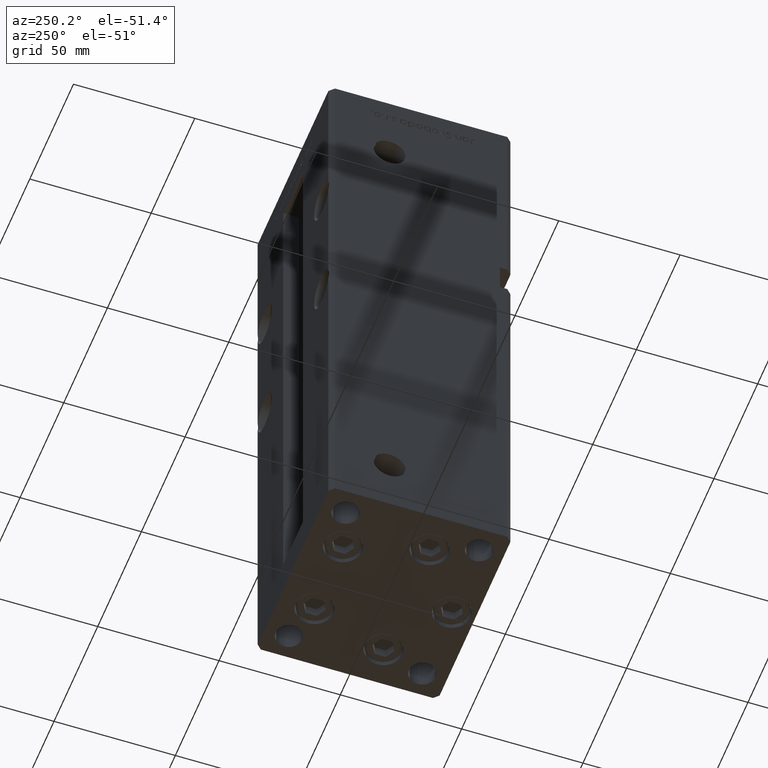
[diagram: clean part render]
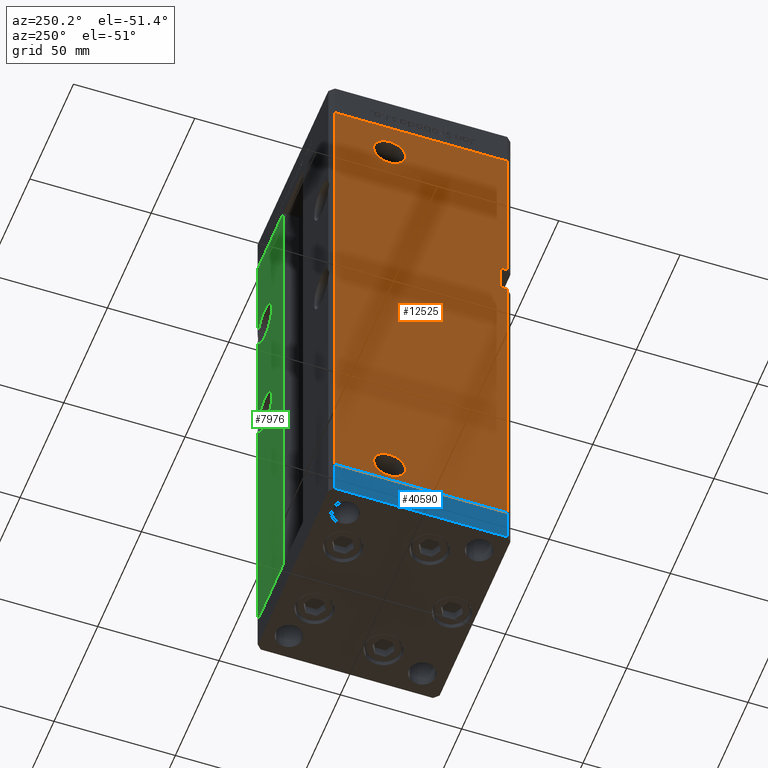
[diagram: same view with three faces highlighted in distinct colors, each labeled with its STEP entity id]
A machine part, auxiliary view with three faces highlighted in distinct colors.
Their STEP definitions:

[orange] entity #12525 — the highlighted planar face has unit normal (1, 0, 0).
#315 = CARTESIAN_POINT ( 'NONE',  ( -42.50000000000001421, 35.50000000000000711, 0.000000000000000000 ) ) ;
#450 = DIRECTION ( 'NONE',  ( -3.909236002201255146E-16, 1.000000000000000000, 0.000000000000000000 ) ) ;
#1595 = VECTOR ( 'NONE', #22530, 1000.000000000000000 ) ;
#2343 = CARTESIAN_POINT ( 'NONE',  ( -42.50000000000001421, 35.50000000000000711, 0.000000000000000000 ) ) ;
#4522 = CARTESIAN_POINT ( 'NONE',  ( -42.49999999999998579, -35.49999999999996447, 139.0000000000000284 ) ) ;
#5471 = DIRECTION ( 'NONE',  ( -1.000000000000000000, -2.275047181608927644E-16, 0.000000000000000000 ) ) ;
#5996 = CARTESIAN_POINT ( 'NONE',  ( -42.50000000000001421, 35.50000000000000711, 218.5000000000000000 ) ) ;
#6249 = CARTESIAN_POINT ( 'NONE',  ( -42.50000000000000000, 19.58000000000000895, 203.5000000000000000 ) ) ;
#6898 = LINE ( 'NONE', #7680, #25283 ) ;
#7068 = EDGE_CURVE ( 'NONE', #34292, #44123, #17790, .T. ) ;
#7445 = ORIENTED_EDGE ( 'NONE', *, *, #27157, .F. ) ;
#7680 = CARTESIAN_POINT ( 'NONE',  ( -42.49999999999998579, -32.50000000000000711, 139.0000000000000284 ) ) ;
#7770 = EDGE_CURVE ( 'NONE', #10957, #23365, #30446, .T. ) ;
#8430 = DIRECTION ( 'NONE',  ( 0.000000000000000000, -1.000000000000000000, 0.000000000000000000 ) ) ;
#8622 = EDGE_CURVE ( 'NONE', #10152, #40328, #6898, .T. ) ;
#8661 = VERTEX_POINT ( 'NONE', #13026 ) ;
#8979 = AXIS2_PLACEMENT_3D ( 'NONE', #19770, #52051, #24060 ) ;
#10152 = VERTEX_POINT ( 'NONE', #14323 ) ;
#10252 = CARTESIAN_POINT ( 'NONE',  ( -42.50000000000001421, 35.50000000000000711, 218.5000000000000000 ) ) ;
#10771 = CARTESIAN_POINT ( 'NONE',  ( -42.49999999999998579, -35.50000000000000711, 218.5000000000000000 ) ) ;
#10957 = VERTEX_POINT ( 'NONE', #6249 ) ;
#11264 = ORIENTED_EDGE ( 'NONE', *, *, #13007, .F. ) ;
#11286 = VERTEX_POINT ( 'NONE', #50827 ) ;
#11981 = ORIENTED_EDGE ( 'NONE', *, *, #40268, .F. ) ;
#12525 = ADVANCED_FACE ( 'NONE', ( #36470, #52875, #37264 ), #20856, .F. ) ;
#13007 = EDGE_CURVE ( 'NONE', #15547, #19266, #38279, .T. ) ;
#13026 = CARTESIAN_POINT ( 'NONE',  ( -42.49999999999998579, -32.50000000000000711, 151.0000000000000568 ) ) ;
#13139 = ORIENTED_EDGE ( 'NONE', *, *, #7770, .F. ) ;
#13145 = ORIENTED_EDGE ( 'NONE', *, *, #48176, .F. ) ;
#13301 = ORIENTED_EDGE ( 'NONE', *, *, #8622, .F. ) ;
#13446 = EDGE_LOOP ( 'NONE', ( #11981, #13139 ) ) ;
#13733 = CARTESIAN_POINT ( 'NONE',  ( -42.50000000000000000, 6.419999999999991935, 9.000000000000007105 ) ) ;
#14323 = CARTESIAN_POINT ( 'NONE',  ( -42.49999999999998579, -32.50000000000000711, 139.0000000000000284 ) ) ;
#15547 = VERTEX_POINT ( 'NONE', #38446 ) ;
#15613 = DIRECTION ( 'NONE',  ( -0.000000000000000000, -0.000000000000000000, -1.000000000000000000 ) ) ;
#15880 = ORIENTED_EDGE ( 'NONE', *, *, #40105, .F. ) ;
#16773 = CARTESIAN_POINT ( 'NONE',  ( -42.50000000000000000, 12.99999999999999467, 9.000000000000007105 ) ) ;
#16916 = CARTESIAN_POINT ( 'NONE',  ( -42.50000000000001421, 35.50000000000000711, 218.5000000000000000 ) ) ;
#17790 = LINE ( 'NONE', #315, #49264 ) ;
#18117 = DIRECTION ( 'NONE',  ( -1.000000000000000000, -2.275047181608927644E-16, 0.000000000000000000 ) ) ;
#19266 = VERTEX_POINT ( 'NONE', #30846 ) ;
#19770 = CARTESIAN_POINT ( 'NONE',  ( -42.50000000000000000, 12.99999999999999467, 203.5000000000000000 ) ) ;
#20552 = CIRCLE ( 'NONE', #41168, 6.580000000000002736 ) ;
#20590 = LINE ( 'NONE', #40255, #33081 ) ;
#20856 = PLANE ( 'NONE',  #24396 ) ;
#20989 = DIRECTION ( 'NONE',  ( 3.909236002201255146E-16, -1.000000000000000000, 0.000000000000000000 ) ) ;
#21430 = ORIENTED_EDGE ( 'NONE', *, *, #7068, .T. ) ;
#22530 = DIRECTION ( 'NONE',  ( -5.782411586589351722E-16, 0.000000000000000000, -1.000000000000000000 ) ) ;
#22801 = DIRECTION ( 'NONE',  ( 0.000000000000000000, -1.000000000000000000, 0.000000000000000000 ) ) ;
#23365 = VERTEX_POINT ( 'NONE', #34735 ) ;
#24060 = DIRECTION ( 'NONE',  ( 0.000000000000000000, -1.000000000000000000, 0.000000000000000000 ) ) ;
#24396 = AXIS2_PLACEMENT_3D ( 'NONE', #25166, #41036, #450 ) ;
#24449 = VERTEX_POINT ( 'NONE', #13733 ) ;
#24798 = ORIENTED_EDGE ( 'NONE', *, *, #38761, .T. ) ;
#25166 = CARTESIAN_POINT ( 'NONE',  ( -42.50000000000001421, 35.50000000000000711, 218.5000000000000000 ) ) ;
#25186 = ORIENTED_EDGE ( 'NONE', *, *, #46943, .F. ) ;
#25283 = VECTOR ( 'NONE', #48278, 1000.000000000000000 ) ;
#25362 = AXIS2_PLACEMENT_3D ( 'NONE', #31992, #18117, #48385 ) ;
#26418 = LINE ( 'NONE', #5996, #37607 ) ;
#27157 = EDGE_CURVE ( 'NONE', #24449, #11286, #20552, .T. ) ;
#29275 = LINE ( 'NONE', #16916, #30649 ) ;
#29827 = VECTOR ( 'NONE', #15613, 1000.000000000000000 ) ;
#30446 = CIRCLE ( 'NONE', #8979, 6.580000000000015170 ) ;
#30649 = VECTOR ( 'NONE', #37335, 1000.000000000000000 ) ;
#30846 = CARTESIAN_POINT ( 'NONE',  ( -42.49999999999998579, -35.50000000000001421, 151.0000000000000568 ) ) ;
#31662 = DIRECTION ( 'NONE',  ( -0.000000000000000000, -1.000000000000000000, -0.000000000000000000 ) ) ;
#31992 = CARTESIAN_POINT ( 'NONE',  ( -42.50000000000000000, 12.99999999999999467, 203.5000000000000000 ) ) ;
#32508 = CARTESIAN_POINT ( 'NONE',  ( -42.49999999999998579, -35.50000000000000711, 0.000000000000000000 ) ) ;
#32549 = ORIENTED_EDGE ( 'NONE', *, *, #43165, .T. ) ;
#33081 = VECTOR ( 'NONE', #31662, 1000.000000000000000 ) ;
#34292 = VERTEX_POINT ( 'NONE', #2343 ) ;
#34379 = LINE ( 'NONE', #35172, #1595 ) ;
#34735 = CARTESIAN_POINT ( 'NONE',  ( -42.50000000000000000, 6.419999999999978613, 203.5000000000000000 ) ) ;
#35172 = CARTESIAN_POINT ( 'NONE',  ( -42.49999999999998579, -32.50000000000000711, 151.0000000000000568 ) ) ;
#35500 = LINE ( 'NONE', #10771, #29827 ) ;
#35699 = CIRCLE ( 'NONE', #45985, 6.580000000000002736 ) ;
#36470 = FACE_OUTER_BOUND ( 'NONE', #52083, .T. ) ;
#37264 = FACE_BOUND ( 'NONE', #13446, .T. ) ;
#37335 = DIRECTION ( 'NONE',  ( -0.000000000000000000, -0.000000000000000000, -1.000000000000000000 ) ) ;
#37607 = VECTOR ( 'NONE', #51950, 1000.000000000000000 ) ;
#38279 = LINE ( 'NONE', #46618, #52800 ) ;
#38407 = DIRECTION ( 'NONE',  ( -1.000000000000000000, -2.275047181608927644E-16, 0.000000000000000000 ) ) ;
#38446 = CARTESIAN_POINT ( 'NONE',  ( -42.49999999999998579, -35.50000000000000711, 218.5000000000000000 ) ) ;
#38761 = EDGE_CURVE ( 'NONE', #8661, #19266, #20590, .T. ) ;
#38943 = CARTESIAN_POINT ( 'NONE',  ( -42.50000000000000000, 12.99999999999999467, 9.000000000000007105 ) ) ;
#40105 = EDGE_CURVE ( 'NONE', #11286, #24449, #35699, .T. ) ;
#40255 = CARTESIAN_POINT ( 'NONE',  ( -42.49999999999998579, -32.50000000000000711, 151.0000000000000568 ) ) ;
#40268 = EDGE_CURVE ( 'NONE', #23365, #10957, #41684, .T. ) ;
#40328 = VERTEX_POINT ( 'NONE', #4522 ) ;
#41036 = DIRECTION ( 'NONE',  ( 1.000000000000000000, 3.909236002201255146E-16, -0.000000000000000000 ) ) ;
#41168 = AXIS2_PLACEMENT_3D ( 'NONE', #38943, #38407, #22801 ) ;
#41684 = CIRCLE ( 'NONE', #25362, 6.580000000000015170 ) ;
#43165 = EDGE_CURVE ( 'NONE', #49911, #34292, #29275, .T. ) ;
#44123 = VERTEX_POINT ( 'NONE', #32508 ) ;
#44921 = EDGE_CURVE ( 'NONE', #40328, #44123, #35500, .T. ) ;
#45985 = AXIS2_PLACEMENT_3D ( 'NONE', #16773, #5471, #8430 ) ;
#46082 = DIRECTION ( 'NONE',  ( -0.000000000000000000, -0.000000000000000000, -1.000000000000000000 ) ) ;
#46618 = CARTESIAN_POINT ( 'NONE',  ( -42.49999999999998579, -35.50000000000000711, 218.5000000000000000 ) ) ;
#46943 = EDGE_CURVE ( 'NONE', #49911, #15547, #26418, .T. ) ;
#48176 = EDGE_CURVE ( 'NONE', #8661, #10152, #34379, .T. ) ;
#48278 = DIRECTION ( 'NONE',  ( -0.000000000000000000, -1.000000000000000000, -0.000000000000000000 ) ) ;
#48385 = DIRECTION ( 'NONE',  ( 0.000000000000000000, -1.000000000000000000, 0.000000000000000000 ) ) ;
#48634 = ORIENTED_EDGE ( 'NONE', *, *, #44921, .F. ) ;
#49264 = VECTOR ( 'NONE', #20989, 1000.000000000000000 ) ;
#49911 = VERTEX_POINT ( 'NONE', #10252 ) ;
#50084 = EDGE_LOOP ( 'NONE', ( #7445, #15880 ) ) ;
#50827 = CARTESIAN_POINT ( 'NONE',  ( -42.50000000000000000, 19.57999999999999829, 9.000000000000007105 ) ) ;
#51950 = DIRECTION ( 'NONE',  ( 3.909236002201255146E-16, -1.000000000000000000, 0.000000000000000000 ) ) ;
#52051 = DIRECTION ( 'NONE',  ( -1.000000000000000000, -2.275047181608927644E-16, 0.000000000000000000 ) ) ;
#52083 = EDGE_LOOP ( 'NONE', ( #48634, #13301, #13145, #24798, #11264, #25186, #32549, #21430 ) ) ;
#52800 = VECTOR ( 'NONE', #46082, 1000.000000000000000 ) ;
#52875 = FACE_BOUND ( 'NONE', #50084, .T. ) ;

[blue] entity #40590 — the highlighted planar face has unit normal (-1, -0, 0).
#299 = ORIENTED_EDGE ( 'NONE', *, *, #21342, .T. ) ;
#1150 = ORIENTED_EDGE ( 'NONE', *, *, #17912, .F. ) ;
#1226 = DIRECTION ( 'NONE',  ( 1.000000000000000000, 1.172770800660376741E-15, -0.000000000000000000 ) ) ;
#2297 = PLANE ( 'NONE',  #3085 ) ;
#3085 = AXIS2_PLACEMENT_3D ( 'NONE', #42359, #1226, #6588 ) ;
#6588 = DIRECTION ( 'NONE',  ( -1.172770800660376741E-15, 1.000000000000000000, 0.000000000000000000 ) ) ;
#6620 = VECTOR ( 'NONE', #23669, 1000.000000000000000 ) ;
#8734 = VERTEX_POINT ( 'NONE', #42882 ) ;
#9444 = CARTESIAN_POINT ( 'NONE',  ( 42.50000000000000711, -35.50000000000000000, 0.000000000000000000 ) ) ;
#10202 = CARTESIAN_POINT ( 'NONE',  ( 42.49999999999992895, 35.50000000000000000, -15.00000000000000000 ) ) ;
#12354 = VERTEX_POINT ( 'NONE', #26575 ) ;
#16328 = LINE ( 'NONE', #39745, #44373 ) ;
#17903 = CARTESIAN_POINT ( 'NONE',  ( 42.50000000000000711, -35.50000000000000000, -15.00000000000000000 ) ) ;
#17912 = EDGE_CURVE ( 'NONE', #12354, #8734, #45143, .T. ) ;
#18223 = EDGE_CURVE ( 'NONE', #25493, #49070, #16328, .T. ) ;
#20130 = CARTESIAN_POINT ( 'NONE',  ( 42.49999999999992895, 35.50000000000000000, -15.00000000000000000 ) ) ;
#21342 = EDGE_CURVE ( 'NONE', #49070, #8734, #21757, .T. ) ;
#21757 = LINE ( 'NONE', #10202, #35013 ) ;
#23669 = DIRECTION ( 'NONE',  ( -1.172770800660376741E-15, 1.000000000000000000, 0.000000000000000000 ) ) ;
#24247 = ORIENTED_EDGE ( 'NONE', *, *, #18223, .T. ) ;
#25493 = VERTEX_POINT ( 'NONE', #17903 ) ;
#26575 = CARTESIAN_POINT ( 'NONE',  ( 42.50000000000000711, -35.50000000000000000, 0.000000000000000000 ) ) ;
#27221 = LINE ( 'NONE', #51172, #40833 ) ;
#32451 = DIRECTION ( 'NONE',  ( -1.172770800660376741E-15, 1.000000000000000000, 0.000000000000000000 ) ) ;
#35013 = VECTOR ( 'NONE', #38157, 1000.000000000000000 ) ;
#35781 = EDGE_LOOP ( 'NONE', ( #1150, #46250, #24247, #299 ) ) ;
#36237 = EDGE_CURVE ( 'NONE', #25493, #12354, #27221, .T. ) ;
#38157 = DIRECTION ( 'NONE',  ( 0.000000000000000000, 0.000000000000000000, 1.000000000000000000 ) ) ;
#39745 = CARTESIAN_POINT ( 'NONE',  ( 42.50000000000000711, -35.50000000000000000, -15.00000000000000000 ) ) ;
#40590 = ADVANCED_FACE ( 'NONE', ( #43424 ), #2297, .T. ) ;
#40833 = VECTOR ( 'NONE', #42576, 1000.000000000000000 ) ;
#42359 = CARTESIAN_POINT ( 'NONE',  ( 42.50000000000000711, -35.50000000000000000, -15.00000000000000000 ) ) ;
#42576 = DIRECTION ( 'NONE',  ( 0.000000000000000000, 0.000000000000000000, 1.000000000000000000 ) ) ;
#42882 = CARTESIAN_POINT ( 'NONE',  ( 42.49999999999992895, 35.50000000000000000, 0.000000000000000000 ) ) ;
#43424 = FACE_OUTER_BOUND ( 'NONE', #35781, .T. ) ;
#44373 = VECTOR ( 'NONE', #32451, 1000.000000000000000 ) ;
#45143 = LINE ( 'NONE', #9444, #6620 ) ;
#46250 = ORIENTED_EDGE ( 'NONE', *, *, #36237, .F. ) ;
#49070 = VERTEX_POINT ( 'NONE', #20130 ) ;
#51172 = CARTESIAN_POINT ( 'NONE',  ( 42.50000000000000711, -35.50000000000000000, -15.00000000000000000 ) ) ;

[green] entity #7976 — the highlighted planar face has unit normal (0, -1, 0).
#743 = ORIENTED_EDGE ( 'NONE', *, *, #12786, .F. ) ;
#2325 = AXIS2_PLACEMENT_3D ( 'NONE', #18801, #35193, #48339 ) ;
#2894 = DIRECTION ( 'NONE',  ( -1.000000000000000000, 0.000000000000000000, 0.000000000000000000 ) ) ;
#2998 = VERTEX_POINT ( 'NONE', #49674 ) ;
#4224 = DIRECTION ( 'NONE',  ( 0.000000000000000000, 1.000000000000000000, -0.000000000000000000 ) ) ;
#4670 = AXIS2_PLACEMENT_3D ( 'NONE', #10325, #42871, #38819 ) ;
#4692 = ORIENTED_EDGE ( 'NONE', *, *, #27318, .T. ) ;
#5280 = DIRECTION ( 'NONE',  ( 0.000000000000000000, 1.000000000000000000, -0.000000000000000000 ) ) ;
#5317 = EDGE_CURVE ( 'NONE', #7903, #17924, #52340, .T. ) ;
#5628 = AXIS2_PLACEMENT_3D ( 'NONE', #44831, #4224, #52636 ) ;
#6431 = CIRCLE ( 'NONE', #5628, 8.249999999999992895 ) ;
#6665 = VECTOR ( 'NONE', #18262, 1000.000000000000000 ) ;
#7213 = CARTESIAN_POINT ( 'NONE',  ( 40.50000000000000711, 37.50000000000000000, 218.5000000000000000 ) ) ;
#7535 = DIRECTION ( 'NONE',  ( 0.000000000000000000, 0.000000000000000000, -1.000000000000000000 ) ) ;
#7887 = LINE ( 'NONE', #12171, #13444 ) ;
#7903 = VERTEX_POINT ( 'NONE', #32389 ) ;
#7976 = ADVANCED_FACE ( 'NONE', ( #30485 ), #22420, .F. ) ;
#8097 = CARTESIAN_POINT ( 'NONE',  ( 32.50000000000000000, 37.50000000000000000, 166.7500000000000000 ) ) ;
#9018 = AXIS2_PLACEMENT_3D ( 'NONE', #47484, #43714, #35112 ) ;
#9458 = ORIENTED_EDGE ( 'NONE', *, *, #29118, .F. ) ;
#10325 = CARTESIAN_POINT ( 'NONE',  ( -11.24999999999999822, 37.50000000000000000, 218.5000000000000000 ) ) ;
#10488 = EDGE_CURVE ( 'NONE', #14049, #44197, #44325, .T. ) ;
#10550 = ORIENTED_EDGE ( 'NONE', *, *, #34055, .F. ) ;
#11435 = CARTESIAN_POINT ( 'NONE',  ( 32.50000000000000000, 37.50000000000000000, 111.7500000000000284 ) ) ;
#11477 = VECTOR ( 'NONE', #35667, 1000.000000000000000 ) ;
#12143 = CARTESIAN_POINT ( 'NONE',  ( 11.24999999999999822, 37.50000000000000000, 0.000000000000000000 ) ) ;
#12148 = VERTEX_POINT ( 'NONE', #40068 ) ;
#12171 = CARTESIAN_POINT ( 'NONE',  ( -11.24999999999999822, 37.50000000000000000, 218.5000000000000000 ) ) ;
#12786 = EDGE_CURVE ( 'NONE', #7903, #48812, #16726, .T. ) ;
#13444 = VECTOR ( 'NONE', #19979, 1000.000000000000000 ) ;
#13677 = CIRCLE ( 'NONE', #37721, 8.250000000000007105 ) ;
#14049 = VERTEX_POINT ( 'NONE', #12143 ) ;
#14426 = VERTEX_POINT ( 'NONE', #42472 ) ;
#15911 = VERTEX_POINT ( 'NONE', #22513 ) ;
#16221 = ORIENTED_EDGE ( 'NONE', *, *, #45097, .F. ) ;
#16474 = EDGE_CURVE ( 'NONE', #44197, #30136, #7887, .T. ) ;
#16726 = CIRCLE ( 'NONE', #9018, 8.250000000000007105 ) ;
#17924 = VERTEX_POINT ( 'NONE', #32517 ) ;
#18262 = DIRECTION ( 'NONE',  ( -0.000000000000000000, -0.000000000000000000, -1.000000000000000000 ) ) ;
#18801 = CARTESIAN_POINT ( 'NONE',  ( 32.50000000000000000, 37.50000000000000000, 120.0000000000000284 ) ) ;
#18883 = EDGE_CURVE ( 'NONE', #26685, #17924, #20326, .T. ) ;
#19570 = DIRECTION ( 'NONE',  ( 0.000000000000000000, 1.000000000000000000, 0.000000000000000000 ) ) ;
#19979 = DIRECTION ( 'NONE',  ( 1.000000000000000000, 0.000000000000000000, 0.000000000000000000 ) ) ;
#20326 = CIRCLE ( 'NONE', #2325, 8.249999999999992895 ) ;
#20408 = DIRECTION ( 'NONE',  ( 0.000000000000000000, 1.000000000000000000, 0.000000000000000000 ) ) ;
#22420 = PLANE ( 'NONE',  #4670 ) ;
#22513 = CARTESIAN_POINT ( 'NONE',  ( 40.50000000000000711, 37.50000000000000000, 177.0155644370746586 ) ) ;
#23108 = AXIS2_PLACEMENT_3D ( 'NONE', #44364, #5280, #7535 ) ;
#23885 = DIRECTION ( 'NONE',  ( -0.000000000000000000, -0.000000000000000000, 1.000000000000000000 ) ) ;
#25750 = VECTOR ( 'NONE', #2894, 1000.000000000000000 ) ;
#26685 = VERTEX_POINT ( 'NONE', #37730 ) ;
#26792 = ORIENTED_EDGE ( 'NONE', *, *, #18883, .F. ) ;
#26821 = DIRECTION ( 'NONE',  ( -0.000000000000000000, -0.000000000000000000, -1.000000000000000000 ) ) ;
#27318 = EDGE_CURVE ( 'NONE', #12148, #14049, #47804, .T. ) ;
#27370 = CARTESIAN_POINT ( 'NONE',  ( -11.24999999999999822, 37.50000000000000000, 0.000000000000000000 ) ) ;
#28137 = CIRCLE ( 'NONE', #45274, 8.250000000000007105 ) ;
#28226 = DIRECTION ( 'NONE',  ( 0.000000000000000000, 0.000000000000000000, 1.000000000000000000 ) ) ;
#28483 = CARTESIAN_POINT ( 'NONE',  ( 32.50000000000000000, 37.50000000000000000, 175.0000000000000284 ) ) ;
#28729 = CARTESIAN_POINT ( 'NONE',  ( 11.24999999999999112, 37.50000000000000000, 218.5000000000000000 ) ) ;
#29118 = EDGE_CURVE ( 'NONE', #2998, #45516, #53139, .T. ) ;
#30136 = VERTEX_POINT ( 'NONE', #7213 ) ;
#30485 = FACE_OUTER_BOUND ( 'NONE', #30569, .T. ) ;
#30569 = EDGE_LOOP ( 'NONE', ( #40225, #26792, #10550, #9458, #43518, #4692, #51570, #52655, #33174, #16221, #48601, #743 ) ) ;
#32389 = CARTESIAN_POINT ( 'NONE',  ( 40.50000000000000711, 37.50000000000000000, 172.9844355629253698 ) ) ;
#32517 = CARTESIAN_POINT ( 'NONE',  ( 40.50000000000000711, 37.50000000000000000, 122.0155644370746160 ) ) ;
#33174 = ORIENTED_EDGE ( 'NONE', *, *, #46439, .T. ) ;
#34055 = EDGE_CURVE ( 'NONE', #45516, #26685, #6431, .T. ) ;
#35112 = DIRECTION ( 'NONE',  ( 0.000000000000000000, 0.000000000000000000, 1.000000000000000000 ) ) ;
#35193 = DIRECTION ( 'NONE',  ( 0.000000000000000000, 1.000000000000000000, -0.000000000000000000 ) ) ;
#35667 = DIRECTION ( 'NONE',  ( -0.000000000000000000, -0.000000000000000000, -1.000000000000000000 ) ) ;
#35891 = VECTOR ( 'NONE', #26821, 1000.000000000000000 ) ;
#35936 = LINE ( 'NONE', #40244, #35891 ) ;
#35962 = DIRECTION ( 'NONE',  ( 0.000000000000000000, 0.000000000000000000, 1.000000000000000000 ) ) ;
#37377 = VECTOR ( 'NONE', #23885, 1000.000000000000000 ) ;
#37721 = AXIS2_PLACEMENT_3D ( 'NONE', #52111, #19570, #35962 ) ;
#37730 = CARTESIAN_POINT ( 'NONE',  ( 32.50000000000000000, 37.50000000000000000, 128.2500000000000284 ) ) ;
#38819 = DIRECTION ( 'NONE',  ( 0.000000000000000000, -0.000000000000000000, -1.000000000000000000 ) ) ;
#39771 = CARTESIAN_POINT ( 'NONE',  ( 11.24999999999999822, 37.50000000000000000, 0.000000000000000000 ) ) ;
#40068 = CARTESIAN_POINT ( 'NONE',  ( 40.50000000000000711, 37.50000000000000000, 0.000000000000000000 ) ) ;
#40225 = ORIENTED_EDGE ( 'NONE', *, *, #5317, .T. ) ;
#40244 = CARTESIAN_POINT ( 'NONE',  ( 40.50000000000000711, 37.50000000000000000, 218.5000000000000000 ) ) ;
#42472 = CARTESIAN_POINT ( 'NONE',  ( 32.50000000000000000, 37.50000000000000000, 183.2500000000000284 ) ) ;
#42871 = DIRECTION ( 'NONE',  ( 0.000000000000000000, -1.000000000000000000, 0.000000000000000000 ) ) ;
#42967 = CARTESIAN_POINT ( 'NONE',  ( 40.50000000000000711, 37.50000000000000000, 218.5000000000000000 ) ) ;
#43518 = ORIENTED_EDGE ( 'NONE', *, *, #45181, .T. ) ;
#43714 = DIRECTION ( 'NONE',  ( 0.000000000000000000, 1.000000000000000000, 0.000000000000000000 ) ) ;
#44197 = VERTEX_POINT ( 'NONE', #28729 ) ;
#44325 = LINE ( 'NONE', #39771, #37377 ) ;
#44364 = CARTESIAN_POINT ( 'NONE',  ( 32.50000000000000000, 37.50000000000000000, 120.0000000000000284 ) ) ;
#44831 = CARTESIAN_POINT ( 'NONE',  ( 32.50000000000000000, 37.50000000000000000, 120.0000000000000284 ) ) ;
#45097 = EDGE_CURVE ( 'NONE', #14426, #15911, #28137, .T. ) ;
#45181 = EDGE_CURVE ( 'NONE', #2998, #12148, #49983, .T. ) ;
#45274 = AXIS2_PLACEMENT_3D ( 'NONE', #28483, #20408, #28226 ) ;
#45516 = VERTEX_POINT ( 'NONE', #11435 ) ;
#46226 = CARTESIAN_POINT ( 'NONE',  ( 40.50000000000000711, 37.50000000000000000, 218.5000000000000000 ) ) ;
#46439 = EDGE_CURVE ( 'NONE', #30136, #15911, #35936, .T. ) ;
#47484 = CARTESIAN_POINT ( 'NONE',  ( 32.50000000000000000, 37.50000000000000000, 175.0000000000000284 ) ) ;
#47804 = LINE ( 'NONE', #27370, #25750 ) ;
#48339 = DIRECTION ( 'NONE',  ( 0.000000000000000000, 0.000000000000000000, -1.000000000000000000 ) ) ;
#48601 = ORIENTED_EDGE ( 'NONE', *, *, #50305, .F. ) ;
#48812 = VERTEX_POINT ( 'NONE', #8097 ) ;
#49674 = CARTESIAN_POINT ( 'NONE',  ( 40.50000000000000711, 37.50000000000000000, 117.9844355629254267 ) ) ;
#49983 = LINE ( 'NONE', #46226, #6665 ) ;
#50305 = EDGE_CURVE ( 'NONE', #48812, #14426, #13677, .T. ) ;
#51570 = ORIENTED_EDGE ( 'NONE', *, *, #10488, .T. ) ;
#52111 = CARTESIAN_POINT ( 'NONE',  ( 32.50000000000000000, 37.50000000000000000, 175.0000000000000284 ) ) ;
#52340 = LINE ( 'NONE', #42967, #11477 ) ;
#52636 = DIRECTION ( 'NONE',  ( 0.000000000000000000, 0.000000000000000000, -1.000000000000000000 ) ) ;
#52655 = ORIENTED_EDGE ( 'NONE', *, *, #16474, .T. ) ;
#53139 = CIRCLE ( 'NONE', #23108, 8.249999999999992895 ) ;